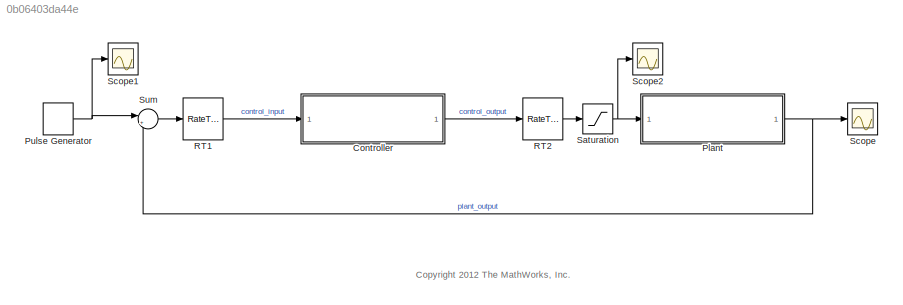
MODEL slx_0b06403da44e
KIND model
BLOCK [ModelReference] Controller
  CopyOfModelName = feedback_control
  DefaultDataLogging = on
  ModelNameDialog = feedback_control
  ModelReferenceVersion = 1.43
  Ports = [1, 1]
BLOCK [ModelReference] Plant
  CopyOfModelName = feedback_plant
  DefaultDataLogging = on
  ModelNameDialog = feedback_plant
  ModelReferenceVersion = 1.23
  Ports = [1, 1]
BLOCK [DiscretePulseGenerator] Pulse Generator
  Period = 4
  Ports = [0, 1]
  PulseType = Time based
  PulseWidth = 50
BLOCK [RateTransition] RT1
BLOCK [RateTransition] RT2
BLOCK [Saturate] Saturation
  InputPortMap = u0
  LowerLimit = -10
  Ports = [1, 1]
  UpperLimit = 10
BLOCK [Scope] Scope
  DataFormat = StructureWithTime
  Floating = off
  LimitDataPoints = off
  NumInputPorts = 1
  Ports = [1]
  SampleTime = 0
  ShowLegends = off
  TimeRange = 1
  YMax = 1.4
  YMin = 0
BLOCK [Scope] Scope1
  DataFormat = StructureWithTime
  Floating = off
  NumInputPorts = 1
  Ports = [1]
  SampleTime = 0
  SaveName = ScopeData1
  ShowLegends = off
BLOCK [Scope] Scope2
  DataFormat = StructureWithTime
  Floating = off
  NumInputPorts = 1
  Ports = [1]
  SampleTime = 0
  SaveName = ScopeData2
  ShowLegends = off
BLOCK [Sum] Sum
  IconShape = round
  InputSameDT = off
  Inputs = |+-
  OutDataTypeStr = Inherit: Inherit via internal rule
  Ports = [2, 1]
  SaturateOnIntegerOverflow = off
ANNOTATION (root): <copyright redacted>
LINE Controller:1 -> RT2:1
NET Plant:1 -> Scope:1, Sum:2
NET Pulse Generator:1 -> Scope1:1, Sum:1
LINE RT1:1 -> Controller:1
LINE RT2:1 -> Saturation:1
NET Saturation:1 -> Plant:1, Scope2:1
LINE Sum:1 -> RT1:1
note: NET lines group one-source signal fan-out (src -> all destinations, sorted); 1:1 wires keep LINE
